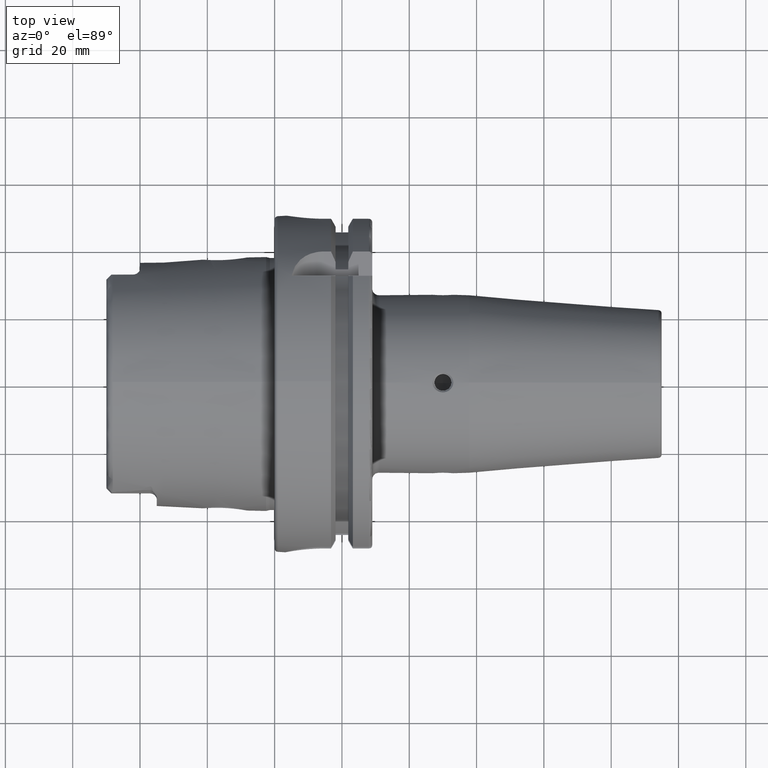
[diagram: clean part render]
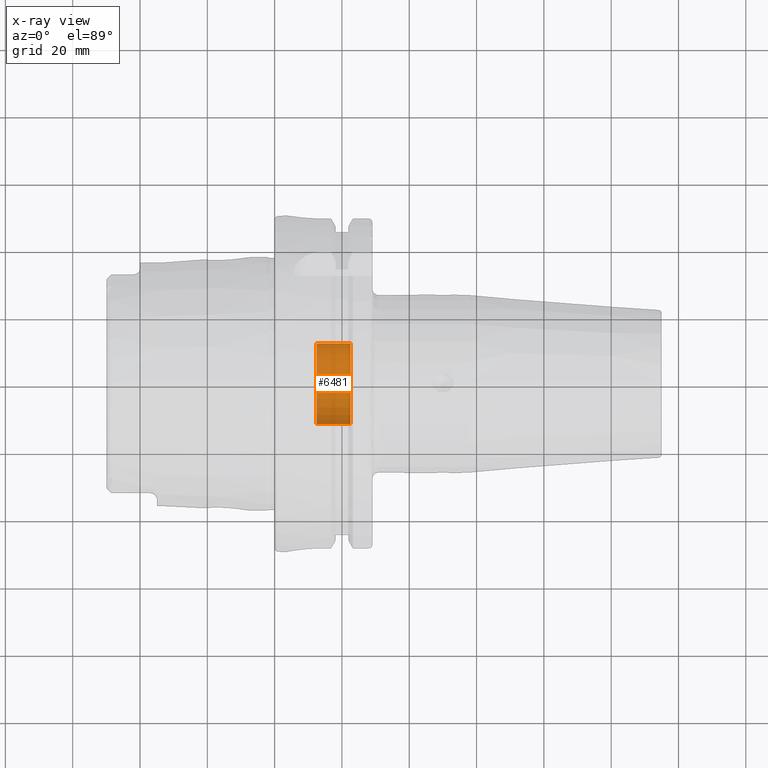
[diagram: x-ray — body ghosted, one internal face saturated and labeled with its STEP entity id]
A machine part, top view, then the same camera in x-ray: the body is ghosted and one INTERNAL B-rep face — a face not visible from any outside direction — is saturated and labeled: STEP entity #6481.
In plain terms, the highlighted cylindrical surface (partial cylindrical patch) has radius 12 mm, axis along (-1, 0, 0).
Its self-contained STEP definition (entity closure, byte-faithful):
#6430=CARTESIAN_POINT('',(1.25E1,0.E0,0.E0));
#6431=DIRECTION('',(1.E0,0.E0,0.E0));
#6432=DIRECTION('',(0.E0,-1.E0,0.E0));
#6433=AXIS2_PLACEMENT_3D('',#6430,#6431,#6432);
#6440=DIRECTION('',(1.E0,0.E0,0.E0));
#6441=VECTOR('',#6440,1.E1);
#6442=CARTESIAN_POINT('',(1.25E1,-1.2E1,0.E0));
#6443=LINE('',#6442,#6441);
#6444=DIRECTION('',(1.E0,0.E0,0.E0));
#6445=VECTOR('',#6444,1.E1);
#6446=CARTESIAN_POINT('',(1.25E1,1.2E1,0.E0));
#6447=LINE('',#6446,#6445);
#6453=CARTESIAN_POINT('',(2.25E1,0.E0,0.E0));
#6454=DIRECTION('',(-1.E0,0.E0,0.E0));
#6455=DIRECTION('',(0.E0,1.E0,0.E0));
#6456=AXIS2_PLACEMENT_3D('',#6453,#6454,#6455);
#6458=CARTESIAN_POINT('',(2.25E1,1.2E1,0.E0));
#6459=CARTESIAN_POINT('',(2.25E1,-1.2E1,0.E0));
#6460=VERTEX_POINT('',#6458);
#6461=VERTEX_POINT('',#6459);
#6462=CARTESIAN_POINT('',(1.25E1,1.2E1,0.E0));
#6463=CARTESIAN_POINT('',(1.25E1,-1.2E1,0.E0));
#6464=VERTEX_POINT('',#6462);
#6465=VERTEX_POINT('',#6463);
#6466=CARTESIAN_POINT('',(2.3E1,0.E0,0.E0));
#6467=DIRECTION('',(-1.E0,0.E0,0.E0));
#6468=DIRECTION('',(0.E0,1.E0,0.E0));
#6469=AXIS2_PLACEMENT_3D('',#6466,#6467,#6468);
#6470=CYLINDRICAL_SURFACE('',#6469,1.2E1);
#6472=ORIENTED_EDGE('',*,*,#6471,.T.);
#6474=ORIENTED_EDGE('',*,*,#6473,.T.);
#6476=ORIENTED_EDGE('',*,*,#6475,.T.);
#6478=ORIENTED_EDGE('',*,*,#6477,.F.);
#6479=EDGE_LOOP('',(#6472,#6474,#6476,#6478));
#6480=FACE_OUTER_BOUND('',#6479,.F.);
#6481=ADVANCED_FACE('',(#6480),#6470,.F.);
#6434=CIRCLE('',#6433,1.2E1);
#6457=CIRCLE('',#6456,1.2E1);
#6471=EDGE_CURVE('',#6465,#6464,#6434,.T.);
#6473=EDGE_CURVE('',#6464,#6460,#6447,.T.);
#6475=EDGE_CURVE('',#6460,#6461,#6457,.T.);
#6477=EDGE_CURVE('',#6465,#6461,#6443,.T.);